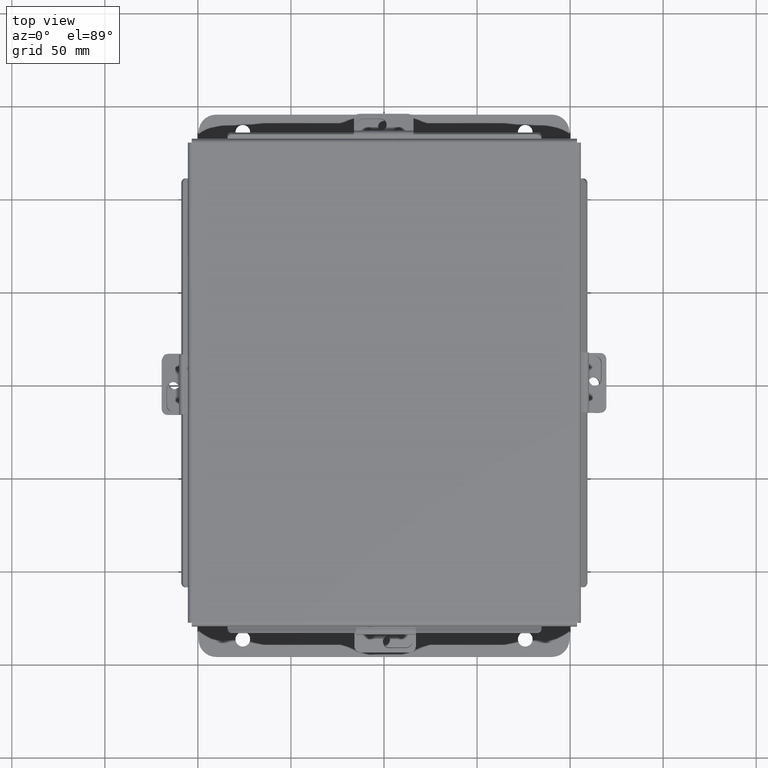
[diagram: clean part render]
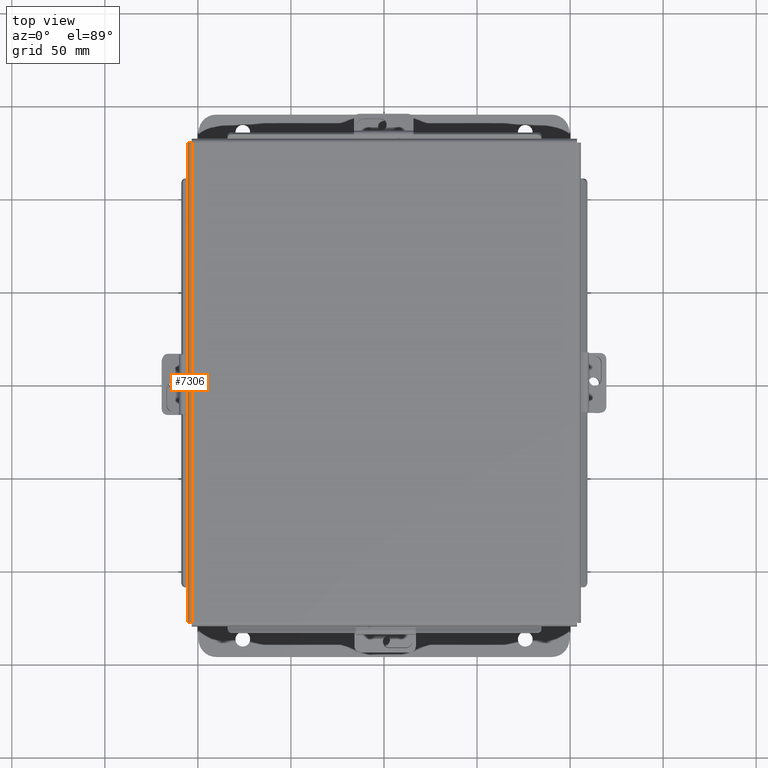
[diagram: same view with one face highlighted and labeled with its STEP entity id]
A machine part, top view. The second image highlights one B-rep face of the part: STEP entity #7306.
In plain terms, the highlighted cylindrical surface (edge-blend (fillet) strip) has radius 2.2276 mm, axis along (0, 1, 0).
Its self-contained STEP definition (entity closure, byte-faithful):
#367 = CARTESIAN_POINT ( 'NONE',  ( 4.153967403743829200, 5.073490776823436300, -0.009955289458310570900 ) ) ;
#588 = DIRECTION ( 'NONE',  ( 3.166671605124525800E-030, 1.000000000000000000, 1.853823127269377700E-029 ) ) ;
#867 = CARTESIAN_POINT ( 'NONE',  ( 4.122445747341818600, -5.071020388411732000, -0.05713078207832025100 ) ) ;
#927 = VERTEX_POINT ( 'NONE', #6896 ) ;
#1089 = VERTEX_POINT ( 'NONE', #8964 ) ;
#1096 = CARTESIAN_POINT ( 'NONE',  ( 4.091505289458327300, -5.069538155364699400, -0.07241740374381154500 ) ) ;
#1135 = CARTESIAN_POINT ( 'NONE',  ( 4.138680782078338000, 5.072008543776402900, -0.04089574734180114600 ) ) ;
#1343 = CARTESIAN_POINT ( 'NONE',  ( 4.080029903155010000, -5.069044077682353800, -0.07470000000000029400 ) ) ;
#1387 = CYLINDRICAL_SURFACE ( 'NONE', #9323, 0.08770000000000026400 ) ;
#1765 = CARTESIAN_POINT ( 'NONE',  ( 4.156250000000018700, -5.074478932188144500, 0.01299999999999956100 ) ) ;
#1808 = ORIENTED_EDGE ( 'NONE', *, *, #8292, .F. ) ;
#1909 = CARTESIAN_POINT ( 'NONE',  ( 4.112717384578545900, 5.070526310729367700, -0.06363106625866901700 ) ) ;
#2621 = VECTOR ( 'NONE', #4310, 39.37007874015748100 ) ;
#2623 = CARTESIAN_POINT ( 'NONE',  ( 4.080029903155010900, 5.069044077682335100, -0.07470000000000029400 ) ) ;
#3302 = CARTESIAN_POINT ( 'NONE',  ( 4.156250000000018700, 5.074478932188125000, 0.01299999999999956100 ) ) ;
#3463 = LINE ( 'NONE', #8439, #7164 ) ;
#3597 = CARTESIAN_POINT ( 'NONE',  ( 4.145181066258687400, -5.072502621458766300, -0.03116738457852710400 ) ) ;
#3699 = EDGE_CURVE ( 'NONE', #4408, #927, #9324, .T. ) ;
#4255 = EDGE_CURVE ( 'NONE', #6314, #927, #6507, .T. ) ;
#4310 = DIRECTION ( 'NONE',  ( -3.174077910953132800E-030, -1.000000000000000000, 5.298129442256146700E-017 ) ) ;
#4408 = VERTEX_POINT ( 'NONE', #6316 ) ;
#4542 = ORIENTED_EDGE ( 'NONE', *, *, #3699, .T. ) ;
#4771 = CARTESIAN_POINT ( 'NONE',  ( 4.138680782078338900, -5.072008543776421500, -0.04089574734179949500 ) ) ;
#4890 = B_SPLINE_CURVE_WITH_KNOTS ( 'NONE', 3,
 ( #3302, #9247, #367, #5570, #1135, #6301, #1909, #7043, #2623, #7820 ),
 .UNSPECIFIED., .F., .F.,
 ( 4, 2, 2, 2, 4 ),
 ( 0.0000000000000000000, 0.2500000000000000000, 0.5000000000000000000, 0.7500000000000000000, 1.000000000000000000 ),
 .UNSPECIFIED. ) ;
#5063 = DIRECTION ( 'NONE',  ( 1.000000000000000000, 0.0000000000000000000, -3.358350761880586900E-015 ) ) ;
#5260 = CARTESIAN_POINT ( 'NONE',  ( 4.153967403743831000, -5.073490776823455800, -0.009955289458307660000 ) ) ;
#5300 = FACE_OUTER_BOUND ( 'NONE', #7022, .T. ) ;
#5570 = CARTESIAN_POINT ( 'NONE',  ( 4.145181066258684800, 5.072502621458745000, -0.03116738457852920300 ) ) ;
#5676 = EDGE_CURVE ( 'NONE', #1089, #6314, #3463, .T. ) ;
#6286 = ORIENTED_EDGE ( 'NONE', *, *, #4255, .F. ) ;
#6301 = CARTESIAN_POINT ( 'NONE',  ( 4.122445747341816800, 5.071020388411711500, -0.05713078207832113200 ) ) ;
#6314 = VERTEX_POINT ( 'NONE', #8032 ) ;
#6316 = CARTESIAN_POINT ( 'NONE',  ( 4.156250000000018700, 5.074478932188125000, 0.01299999999999956100 ) ) ;
#6507 = B_SPLINE_CURVE_WITH_KNOTS ( 'NONE', 3,
 ( #7807, #1343, #1096, #6856, #867, #4771, #3597, #5260, #9363, #1765 ),
 .UNSPECIFIED., .F., .F.,
 ( 4, 2, 2, 2, 4 ),
 ( 0.0000000000000000000, 0.2500000000000000000, 0.5000000000000000000, 0.7500000000000000000, 1.000000000000000000 ),
 .UNSPECIFIED. ) ;
#6626 = CARTESIAN_POINT ( 'NONE',  ( 4.156250000000018700, -5.156250000000010700, 0.01299999999999956100 ) ) ;
#6856 = CARTESIAN_POINT ( 'NONE',  ( 4.112717384578546700, -5.070526310729386300, -0.06363106625866844800 ) ) ;
#6896 = CARTESIAN_POINT ( 'NONE',  ( 4.156250000000018700, -5.074478932188144500, 0.01299999999999956100 ) ) ;
#6944 = ORIENTED_EDGE ( 'NONE', *, *, #5676, .F. ) ;
#7022 = EDGE_LOOP ( 'NONE', ( #6944, #1808, #4542, #6286 ) ) ;
#7043 = CARTESIAN_POINT ( 'NONE',  ( 4.091505289458327300, 5.069538155364680800, -0.07241740374381165600 ) ) ;
#7164 = VECTOR ( 'NONE', #9190, 39.37007874015748100 ) ;
#7306 = ADVANCED_FACE ( 'NONE', ( #5300 ), #1387, .T. ) ;
#7807 = CARTESIAN_POINT ( 'NONE',  ( 4.068550000000018800, -5.068550000000001000, -0.07470000000000015500 ) ) ;
#7820 = CARTESIAN_POINT ( 'NONE',  ( 4.068550000000017900, 5.068549999999998300, -0.07470000000000015500 ) ) ;
#8032 = CARTESIAN_POINT ( 'NONE',  ( 4.068550000000018800, -5.068550000000001000, -0.07470000000000015500 ) ) ;
#8292 = EDGE_CURVE ( 'NONE', #4408, #1089, #4890, .T. ) ;
#8439 = CARTESIAN_POINT ( 'NONE',  ( 4.068550000000017900, 5.074478932188133800, -0.07470000000000015500 ) ) ;
#8964 = CARTESIAN_POINT ( 'NONE',  ( 4.068550000000017900, 5.068549999999998300, -0.07470000000000015500 ) ) ;
#9190 = DIRECTION ( 'NONE',  ( -3.166671605124525800E-030, -1.000000000000000000, -1.853823127269377700E-029 ) ) ;
#9247 = CARTESIAN_POINT ( 'NONE',  ( 4.156250000000016900, 5.073984854505782000, 0.001520096845005427700 ) ) ;
#9323 = AXIS2_PLACEMENT_3D ( 'NONE', #9488, #588, #5063 ) ;
#9324 = LINE ( 'NONE', #6626, #2621 ) ;
#9363 = CARTESIAN_POINT ( 'NONE',  ( 4.156250000000018700, -5.073984854505799700, 0.001520096845008721700 ) ) ;
#9488 = CARTESIAN_POINT ( 'NONE',  ( 4.068550000000017900, 5.074478932188125000, 0.01300000000000010700 ) ) ;